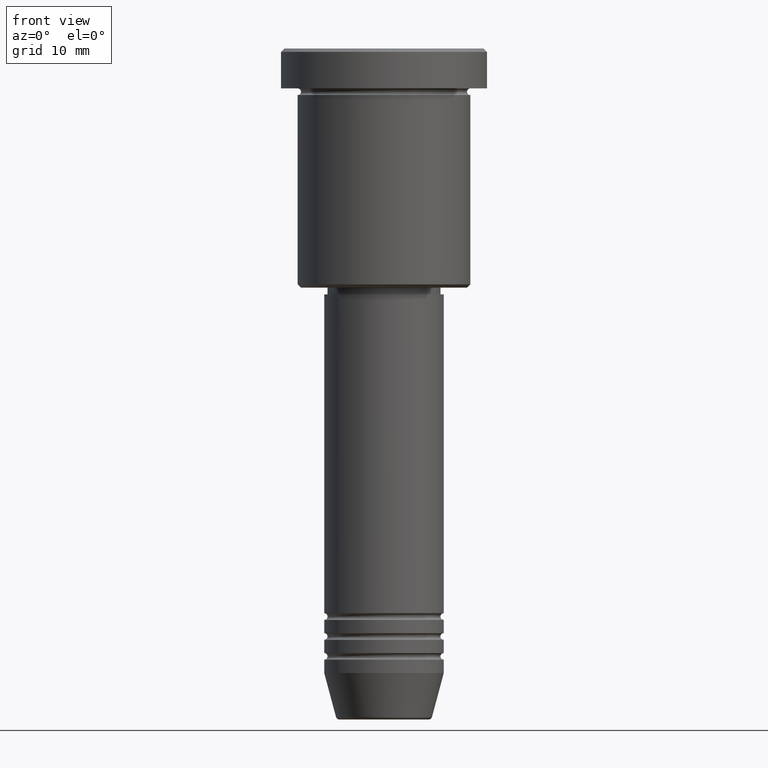
[diagram: clean part render]
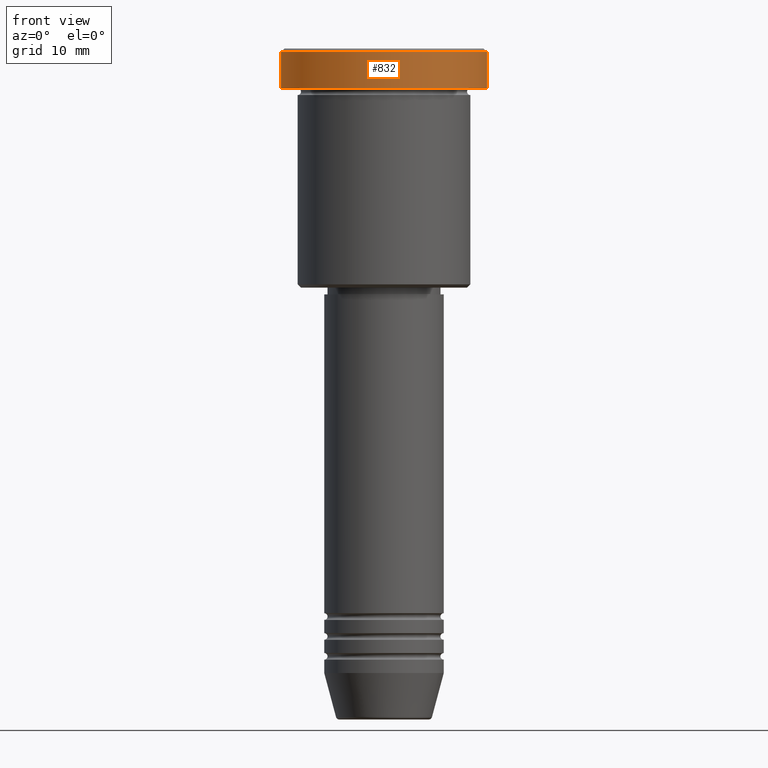
[diagram: same view with one face highlighted and labeled with its STEP entity id]
A machine part, front view. The second image highlights one B-rep face of the part: STEP entity #832.
In plain terms, the highlighted cylindrical surface (partial cylindrical patch) has radius 15.5 mm, axis along (-0, -0, 1).
Its self-contained STEP definition (entity closure, byte-faithful):
#14 = VERTEX_POINT ( 'NONE', #558 ) ;
#66 = FACE_OUTER_BOUND ( 'NONE', #364, .T. ) ;
#125 = DIRECTION ( 'NONE',  ( 1.000000000000000000, 0.000000000000000000, 0.000000000000000000 ) ) ;
#138 = CARTESIAN_POINT ( 'NONE',  ( 0.000000000000000000, 0.000000000000000000, 0.000000000000000000 ) ) ;
#145 = DIRECTION ( 'NONE',  ( -0.000000000000000000, -0.000000000000000000, 1.000000000000000000 ) ) ;
#160 = CIRCLE ( 'NONE', #846, 15.50000000000000000 ) ;
#166 = CARTESIAN_POINT ( 'NONE',  ( 15.50000000000000000, 0.000000000000000000, -5.999999999999995559 ) ) ;
#211 = DIRECTION ( 'NONE',  ( 0.000000000000000000, 0.000000000000000000, -1.000000000000000000 ) ) ;
#256 = EDGE_CURVE ( 'NONE', #14, #309, #752, .T. ) ;
#281 = CARTESIAN_POINT ( 'NONE',  ( 15.50000000000000000, 0.000000000000000000, 0.000000000000000000 ) ) ;
#286 = AXIS2_PLACEMENT_3D ( 'NONE', #138, #145, #722 ) ;
#287 = VERTEX_POINT ( 'NONE', #769 ) ;
#309 = VERTEX_POINT ( 'NONE', #781 ) ;
#364 = EDGE_LOOP ( 'NONE', ( #721, #803, #892, #1059 ) ) ;
#365 = VECTOR ( 'NONE', #517, 1000.000000000000000 ) ;
#389 = DIRECTION ( 'NONE',  ( -0.000000000000000000, -0.000000000000000000, 1.000000000000000000 ) ) ;
#517 = DIRECTION ( 'NONE',  ( -0.000000000000000000, -0.000000000000000000, 1.000000000000000000 ) ) ;
#530 = DIRECTION ( 'NONE',  ( -0.000000000000000000, -0.000000000000000000, 1.000000000000000000 ) ) ;
#546 = VERTEX_POINT ( 'NONE', #166 ) ;
#558 = CARTESIAN_POINT ( 'NONE',  ( 15.50000000000000000, 0.000000000000000000, -0.5000000000000125455 ) ) ;
#649 = EDGE_CURVE ( 'NONE', #287, #546, #160, .T. ) ;
#721 = ORIENTED_EDGE ( 'NONE', *, *, #850, .F. ) ;
#722 = DIRECTION ( 'NONE',  ( 1.000000000000000000, 0.000000000000000000, 0.000000000000000000 ) ) ;
#739 = LINE ( 'NONE', #281, #933 ) ;
#752 = CIRCLE ( 'NONE', #867, 15.50000000000000000 ) ;
#769 = CARTESIAN_POINT ( 'NONE',  ( -15.50000000000000000, 1.898202538678397557E-15, -5.999999999999995559 ) ) ;
#774 = CARTESIAN_POINT ( 'NONE',  ( 0.000000000000000000, 0.000000000000000000, -0.5000000000000125455 ) ) ;
#781 = CARTESIAN_POINT ( 'NONE',  ( -15.50000000000000000, 1.898202538678397557E-15, -0.5000000000000125455 ) ) ;
#803 = ORIENTED_EDGE ( 'NONE', *, *, #649, .T. ) ;
#832 = ADVANCED_FACE ( 'NONE', ( #66 ), #1172, .T. ) ;
#846 = AXIS2_PLACEMENT_3D ( 'NONE', #934, #389, #125 ) ;
#850 = EDGE_CURVE ( 'NONE', #287, #309, #1083, .T. ) ;
#867 = AXIS2_PLACEMENT_3D ( 'NONE', #774, #211, #1124 ) ;
#882 = CARTESIAN_POINT ( 'NONE',  ( -15.50000000000000000, 1.898202538678397557E-15, 0.000000000000000000 ) ) ;
#892 = ORIENTED_EDGE ( 'NONE', *, *, #1065, .T. ) ;
#933 = VECTOR ( 'NONE', #530, 1000.000000000000000 ) ;
#934 = CARTESIAN_POINT ( 'NONE',  ( 0.000000000000000000, 0.000000000000000000, -5.999999999999995559 ) ) ;
#1059 = ORIENTED_EDGE ( 'NONE', *, *, #256, .T. ) ;
#1065 = EDGE_CURVE ( 'NONE', #546, #14, #739, .T. ) ;
#1083 = LINE ( 'NONE', #882, #365 ) ;
#1124 = DIRECTION ( 'NONE',  ( 1.000000000000000000, 0.000000000000000000, 0.000000000000000000 ) ) ;
#1172 = CYLINDRICAL_SURFACE ( 'NONE', #286, 15.50000000000000000 ) ;